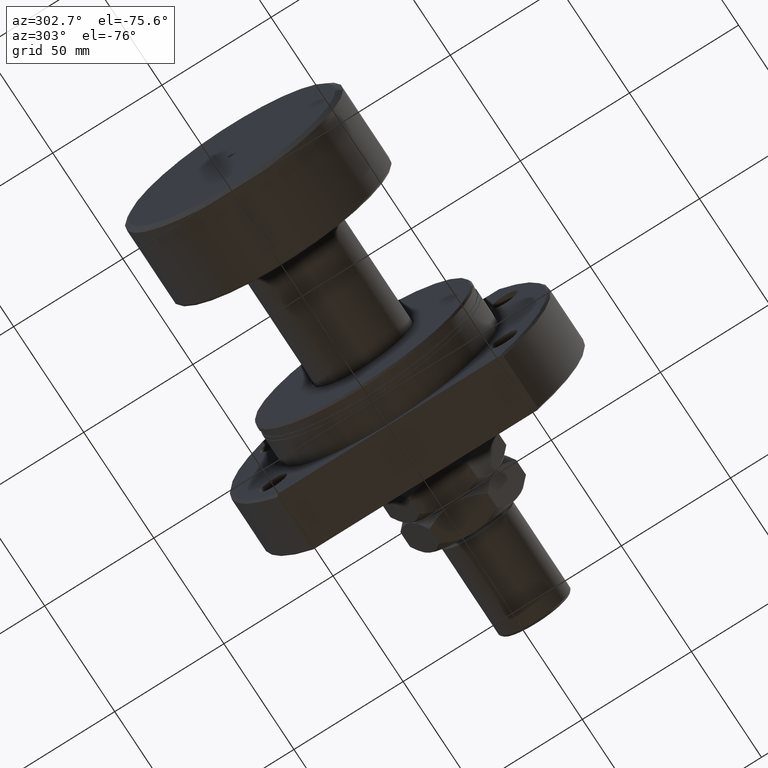
[diagram: clean part render]
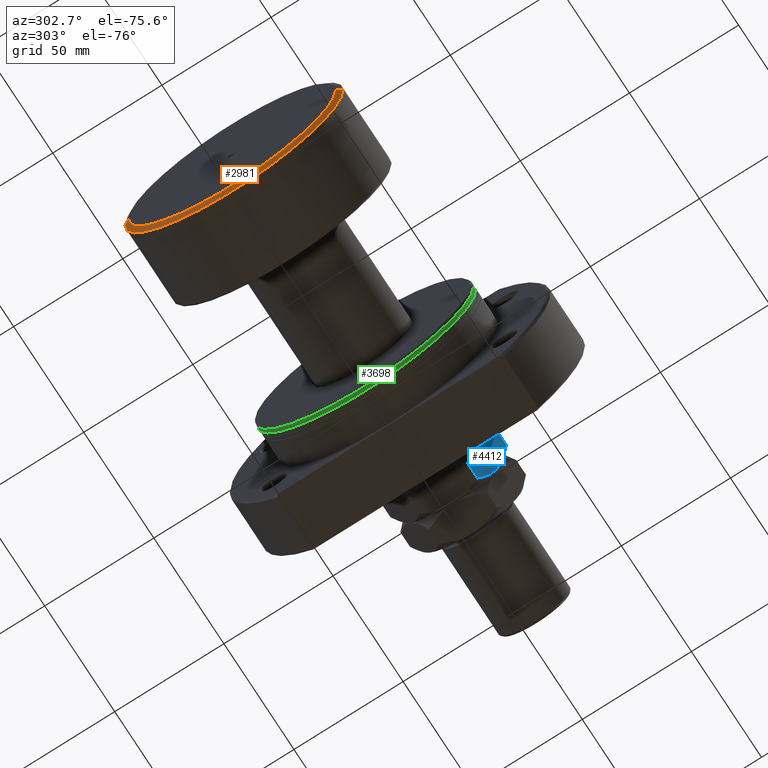
[diagram: same view with three faces highlighted in distinct colors, each labeled with its STEP entity id]
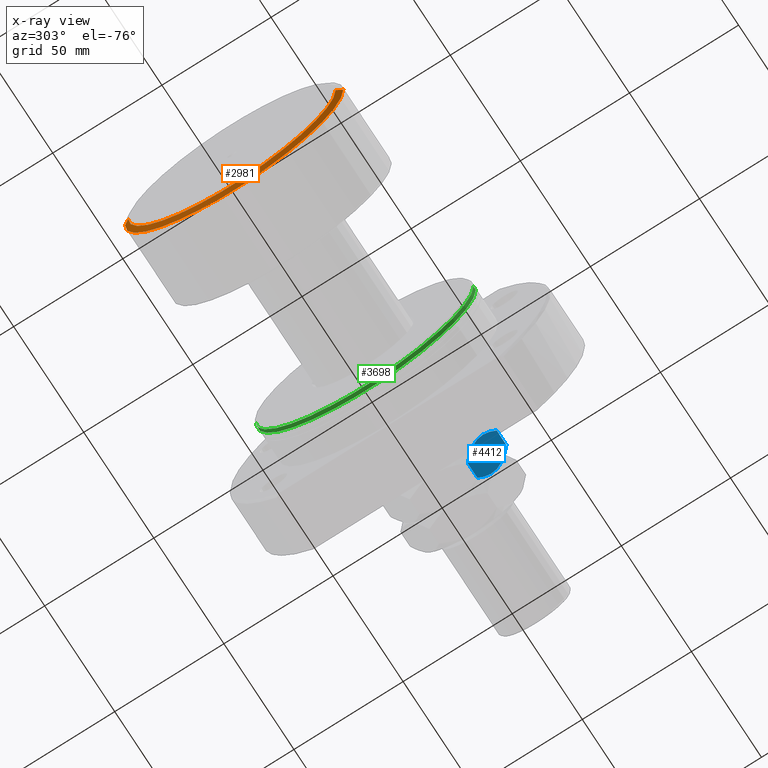
[diagram: x-ray of the same camera — body ghosted, the three highlighted faces saturated]
A machine part, auxiliary view with three faces highlighted in distinct colors.
The next image is the same camera in x-ray (body ghosted, the three faces saturated) — at least one of them is partly hidden behind the body in this view.
Their STEP definitions:

[orange] entity #2981 — the highlighted conical surface has half-angle 59.036 deg.
#6 = VERTEX_POINT ( 'NONE', #2720 ) ;
#60 = CARTESIAN_POINT ( 'NONE',  ( 4.801007089984315887E-15, 47.50000000000000000, 0.000000000000000000 ) ) ;
#141 = VECTOR ( 'NONE', #4007, 999.9999999999998863 ) ;
#286 = CARTESIAN_POINT ( 'NONE',  ( 5.309039692967122051E-15, 5.678242641172895614E-32, 0.000000000000000000 ) ) ;
#313 = VECTOR ( 'NONE', #1929, 999.9999999999998863 ) ;
#344 = ORIENTED_EDGE ( 'NONE', *, *, #2187, .F. ) ;
#417 = LINE ( 'NONE', #60, #313 ) ;
#567 = DIRECTION ( 'NONE',  ( -1.000000000000000000, -1.069542322069065801E-17, -0.000000000000000000 ) ) ;
#697 = EDGE_CURVE ( 'NONE', #6, #3806, #2085, .T. ) ;
#738 = ORIENTED_EDGE ( 'NONE', *, *, #4563, .T. ) ;
#922 = CONICAL_SURFACE ( 'NONE', #2252, 47.50000000000000000, 1.030376826524312728 ) ;
#1032 = DIRECTION ( 'NONE',  ( 1.069542322069065647E-17, -1.000000000000000000, 0.000000000000000000 ) ) ;
#1223 = DIRECTION ( 'NONE',  ( 8.673617379884035472E-18, -1.000000000000000000, 0.000000000000000000 ) ) ;
#1252 = AXIS2_PLACEMENT_3D ( 'NONE', #1498, #3006, #1223 ) ;
#1498 = CARTESIAN_POINT ( 'NONE',  ( 1.500000000000005995, 1.604313483103604941E-17, 0.000000000000000000 ) ) ;
#1607 = ORIENTED_EDGE ( 'NONE', *, *, #697, .F. ) ;
#1700 = ORIENTED_EDGE ( 'NONE', *, *, #3163, .T. ) ;
#1727 = FACE_OUTER_BOUND ( 'NONE', #1885, .T. ) ;
#1885 = EDGE_LOOP ( 'NONE', ( #1607, #344, #738, #1700 ) ) ;
#1929 = DIRECTION ( 'NONE',  ( 0.5144957554275262357, 0.8574929257125444293, 0.000000000000000000 ) ) ;
#2085 = LINE ( 'NONE', #3607, #141 ) ;
#2187 = EDGE_CURVE ( 'NONE', #2527, #6, #4825, .T. ) ;
#2252 = AXIS2_PLACEMENT_3D ( 'NONE', #2539, #4468, #3647 ) ;
#2279 = CARTESIAN_POINT ( 'NONE',  ( 1.500000000000005551, 50.00000000000000000, 0.000000000000000000 ) ) ;
#2527 = VERTEX_POINT ( 'NONE', #2700 ) ;
#2539 = CARTESIAN_POINT ( 'NONE',  ( 5.309039692967122051E-15, 5.678242641172895614E-32, 0.000000000000000000 ) ) ;
#2700 = CARTESIAN_POINT ( 'NONE',  ( 4.801007089984315887E-15, 47.50000000000000000, 0.000000000000000000 ) ) ;
#2720 = CARTESIAN_POINT ( 'NONE',  ( 5.817072295949928215E-15, -47.50000000000000000, 5.970153145843347150E-15 ) ) ;
#2981 = ADVANCED_FACE ( 'NONE', ( #1727 ), #922, .T. ) ;
#3006 = DIRECTION ( 'NONE',  ( -1.000000000000000000, -1.069542322069065801E-17, -0.000000000000000000 ) ) ;
#3130 = VERTEX_POINT ( 'NONE', #2279 ) ;
#3163 = EDGE_CURVE ( 'NONE', #3130, #3806, #4479, .T. ) ;
#3607 = CARTESIAN_POINT ( 'NONE',  ( 5.817072295949928215E-15, -47.50000000000000000, 5.817072295949928215E-15 ) ) ;
#3610 = AXIS2_PLACEMENT_3D ( 'NONE', #286, #567, #1032 ) ;
#3647 = DIRECTION ( 'NONE',  ( -1.069542322069065647E-17, 1.000000000000000000, 0.000000000000000000 ) ) ;
#3806 = VERTEX_POINT ( 'NONE', #4391 ) ;
#4007 = DIRECTION ( 'NONE',  ( 0.5144957554275262357, -0.8574929257125444293, 1.050125966765366654E-16 ) ) ;
#4391 = CARTESIAN_POINT ( 'NONE',  ( 1.500000000000006217, -50.00000000000000000, 6.123233995736766085E-15 ) ) ;
#4468 = DIRECTION ( 'NONE',  ( 1.000000000000000000, 1.069542322069065801E-17, 0.000000000000000000 ) ) ;
#4479 = CIRCLE ( 'NONE', #1252, 50.00000000000000000 ) ;
#4563 = EDGE_CURVE ( 'NONE', #2527, #3130, #417, .T. ) ;
#4825 = CIRCLE ( 'NONE', #3610, 47.50000000000000000 ) ;

[blue] entity #4412 — the highlighted planar face has unit normal (-0, 0.866, 0.5).
#16 = DIRECTION ( 'NONE',  ( -0.8660254037844388186, -0.4999999999999996114, 0.000000000000000000 ) ) ;
#58 = VECTOR ( 'NONE', #1412, 1000.000000000000000 ) ;
#114 = ORIENTED_EDGE ( 'NONE', *, *, #3885, .F. ) ;
#173 = CARTESIAN_POINT ( 'NONE',  ( 23.00000000000000000, -13.27905619136139670, 14.00000000000000000 ) ) ;
#200 = CARTESIAN_POINT ( 'NONE',  ( 19.32386580747566640, -15.40147325699251724, 12.30893151126141660 ) ) ;
#306 = B_SPLINE_CURVE_WITH_KNOTS ( 'NONE', 3,
 ( #4829, #1763, #3637, #2926, #200, #1739, #2453, #4775 ),
 .UNSPECIFIED., .F., .F.,
 ( 4, 2, 2, 4 ),
 ( 0.01376519981810309448, 0.02059946815584628652, 0.02401660232471787559, 0.02743373649358946467 ),
 .UNSPECIFIED. ) ;
#348 = CARTESIAN_POINT ( 'NONE',  ( 14.02580821503726938, -18.46030823416894151, 0.1772566043169696015 ) ) ;
#354 = CARTESIAN_POINT ( 'NONE',  ( 23.00000000000000000, -13.27905619136139670, 3.558112382722774303 ) ) ;
#374 = CARTESIAN_POINT ( 'NONE',  ( 15.51476468404854003, -17.60065881597367010, 0.4351638361031570645 ) ) ;
#393 = EDGE_CURVE ( 'NONE', #2418, #1326, #2638, .T. ) ;
#429 = ORIENTED_EDGE ( 'NONE', *, *, #1047, .F. ) ;
#449 = EDGE_CURVE ( 'NONE', #2418, #3002, #3493, .T. ) ;
#745 = CARTESIAN_POINT ( 'NONE',  ( 11.49999999999998934, -19.91858428704209061, 0.000000000000000000 ) ) ;
#817 = CARTESIAN_POINT ( 'NONE',  ( -3.738821091738284272E-15, -26.55811238272277919, 10.44188761727723680 ) ) ;
#1037 = CARTESIAN_POINT ( 'NONE',  ( 11.49999999999998934, -19.91858428704209061, 14.00000000000000000 ) ) ;
#1047 = EDGE_CURVE ( 'NONE', #4459, #1326, #1126, .T. ) ;
#1126 = B_SPLINE_CURVE_WITH_KNOTS ( 'NONE', 3,
 ( #3023, #4528, #3408, #2648, #2268, #1654, #2447, #4629 ),
 .UNSPECIFIED., .F., .F.,
 ( 4, 2, 2, 4 ),
 ( 0.01376519981810311183, 0.02059946815584628305, 0.02401660232471787212, 0.02743373649358946120 ),
 .UNSPECIFIED. ) ;
#1132 = CARTESIAN_POINT ( 'NONE',  ( -4.336808689942017736E-15, -26.55811238272277919, 14.00000000000000000 ) ) ;
#1260 = CARTESIAN_POINT ( 'NONE',  ( 1.803367014497421650, -25.51693795145499877, 11.48306204854501722 ) ) ;
#1326 = VERTEX_POINT ( 'NONE', #4858 ) ;
#1350 = ORIENTED_EDGE ( 'NONE', *, *, #449, .F. ) ;
#1412 = DIRECTION ( 'NONE',  ( -0.000000000000000000, -0.000000000000000000, -1.000000000000000000 ) ) ;
#1477 = CARTESIAN_POINT ( 'NONE',  ( 11.49999999999998934, -19.91858428704209061, 0.000000000000000000 ) ) ;
#1621 = CARTESIAN_POINT ( 'NONE',  ( -3.738821091738284272E-15, -26.55811238272277919, 10.44188761727723680 ) ) ;
#1654 = CARTESIAN_POINT ( 'NONE',  ( 1.814388699413959527, -25.51057457870151524, 2.556077879292241839 ) ) ;
#1679 = ORIENTED_EDGE ( 'NONE', *, *, #3835, .F. ) ;
#1739 = CARTESIAN_POINT ( 'NONE',  ( 21.18561130058603581, -14.32659399538266598, 11.44392212070776260 ) ) ;
#1763 = CARTESIAN_POINT ( 'NONE',  ( 13.50031108690880899, -18.76370414255229235, 14.00000000000000178 ) ) ;
#2030 = ORIENTED_EDGE ( 'NONE', *, *, #393, .T. ) ;
#2264 = CARTESIAN_POINT ( 'NONE',  ( 19.35245248169770349, -15.38496873293517631, 1.632211428131101982 ) ) ;
#2268 = CARTESIAN_POINT ( 'NONE',  ( 3.676134192524331379, -24.43569531709166753, 1.691068488738588504 ) ) ;
#2302 = CARTESIAN_POINT ( 'NONE',  ( 3.647547518302286740, -24.45219984114900669, 12.36778857186890868 ) ) ;
#2358 = CARTESIAN_POINT ( 'NONE',  ( 9.475678885897345083, -21.08732662719550177, 13.88890122221209822 ) ) ;
#2403 = CARTESIAN_POINT ( 'NONE',  ( 23.00000000000000000, -13.27905619136139670, 10.44188761727722969 ) ) ;
#2418 = VERTEX_POINT ( 'NONE', #817 ) ;
#2447 = CARTESIAN_POINT ( 'NONE',  ( 0.9006392137919247975, -26.03812809019728292, 3.038128090197230069 ) ) ;
#2453 = CARTESIAN_POINT ( 'NONE',  ( 22.09936078620807010, -13.79904048388690185, 10.96187190980276682 ) ) ;
#2638 = LINE ( 'NONE', #4154, #58 ) ;
#2648 = CARTESIAN_POINT ( 'NONE',  ( 4.624867511207326309, -23.88794388016087566, 1.307843751066036786 ) ) ;
#2791 = CARTESIAN_POINT ( 'NONE',  ( 10.99639501427888355, -20.20934076111340616, 14.00000000000000355 ) ) ;
#2805 = DIRECTION ( 'NONE',  ( -0.000000000000000000, -0.000000000000000000, -1.000000000000000000 ) ) ;
#2926 = CARTESIAN_POINT ( 'NONE',  ( 18.37513248879265504, -15.94922469392330200, 12.69215624893396388 ) ) ;
#2946 = CARTESIAN_POINT ( 'NONE',  ( 21.19663298550257124, -14.32023062262917890, 2.516937951454996991 ) ) ;
#2985 = VECTOR ( 'NONE', #2805, 1000.000000000000000 ) ;
#2997 = CARTESIAN_POINT ( 'NONE',  ( 23.00000000000000000, -13.27905619136139670, 3.558112382722774303 ) ) ;
#3002 = VERTEX_POINT ( 'NONE', #1037 ) ;
#3016 = FACE_OUTER_BOUND ( 'NONE', #3815, .T. ) ;
#3023 = CARTESIAN_POINT ( 'NONE',  ( 11.49999999999998934, -19.91858428704209061, 0.000000000000000000 ) ) ;
#3180 = CARTESIAN_POINT ( 'NONE',  ( 11.49999999999998934, -19.91858428704209061, 14.00000000000000000 ) ) ;
#3404 = CARTESIAN_POINT ( 'NONE',  ( 12.51003418050899896, -19.33544078103449237, 0.02214754275533956790 ) ) ;
#3408 = CARTESIAN_POINT ( 'NONE',  ( 7.533391302902209041, -22.20870688608141563, 0.3531725490935799794 ) ) ;
#3493 = B_SPLINE_CURVE_WITH_KNOTS ( 'NONE', 3,
 ( #1621, #1260, #2302, #3810, #4232, #3839, #2358, #4785, #2791, #3180 ),
 .UNSPECIFIED., .F., .F.,
 ( 4, 2, 2, 2, 4 ),
 ( 2.544306848971405334E-07, 0.006882727124393994179, 0.01032396347124854563, 0.01204458164467582006, 0.01376519981810309448 ),
 .UNSPECIFIED. ) ;
#3524 = VERTEX_POINT ( 'NONE', #354 ) ;
#3539 = LINE ( 'NONE', #173, #2985 ) ;
#3637 = CARTESIAN_POINT ( 'NONE',  ( 15.46660869709777941, -17.62846168800276914, 13.64682745090642335 ) ) ;
#3677 = PLANE ( 'NONE',  #4107 ) ;
#3684 = CARTESIAN_POINT ( 'NONE',  ( 12.00360498572109869, -19.62782781297077861, 5.082197683525801264E-18 ) ) ;
#3702 = EDGE_CURVE ( 'NONE', #4748, #3524, #3539, .T. ) ;
#3810 = CARTESIAN_POINT ( 'NONE',  ( 6.513252209336783949, -22.79768446636224866, 13.31372419864524659 ) ) ;
#3815 = EDGE_LOOP ( 'NONE', ( #114, #3902, #1679, #1350, #2030, #429 ) ) ;
#3835 = EDGE_CURVE ( 'NONE', #3002, #4748, #306, .T. ) ;
#3839 = CARTESIAN_POINT ( 'NONE',  ( 8.974191784962714635, -21.37686033991523615, 13.82274339568303745 ) ) ;
#3885 = EDGE_CURVE ( 'NONE', #3524, #4459, #4734, .T. ) ;
#3902 = ORIENTED_EDGE ( 'NONE', *, *, #3702, .F. ) ;
#4094 = CARTESIAN_POINT ( 'NONE',  ( 16.48674779066320539, -17.03948410772191480, 0.6862758013547543001 ) ) ;
#4107 = AXIS2_PLACEMENT_3D ( 'NONE', #1132, #4847, #16 ) ;
#4154 = CARTESIAN_POINT ( 'NONE',  ( -4.336808689942017736E-15, -26.55811238272277919, 14.00000000000000000 ) ) ;
#4232 = CARTESIAN_POINT ( 'NONE',  ( 7.485235315951450197, -22.23650975811052177, 13.56483616389685132 ) ) ;
#4412 = ADVANCED_FACE ( 'NONE', ( #3016 ), #3677, .F. ) ;
#4459 = VERTEX_POINT ( 'NONE', #1477 ) ;
#4526 = CARTESIAN_POINT ( 'NONE',  ( 13.52432111410264071, -18.74984194688869010, 0.1110987777879014343 ) ) ;
#4528 = CARTESIAN_POINT ( 'NONE',  ( 9.499688913091178577, -21.07346443153188886, -9.147955830346443662E-17 ) ) ;
#4629 = CARTESIAN_POINT ( 'NONE',  ( -4.401974839353477935E-15, -26.55811238272277919, 3.558112382722767197 ) ) ;
#4734 = B_SPLINE_CURVE_WITH_KNOTS ( 'NONE', 3,
 ( #2997, #2946, #2264, #4094, #374, #348, #4526, #3404, #3684, #745 ),
 .UNSPECIFIED., .F., .F.,
 ( 4, 2, 2, 2, 4 ),
 ( 2.544306848944028700E-07, 0.006882727124394009792, 0.01032396347124856124, 0.01204458164467583567, 0.01376519981810311183 ),
 .UNSPECIFIED. ) ;
#4748 = VERTEX_POINT ( 'NONE', #2403 ) ;
#4775 = CARTESIAN_POINT ( 'NONE',  ( 23.00000000000000000, -13.27905619136139670, 10.44188761727722969 ) ) ;
#4785 = CARTESIAN_POINT ( 'NONE',  ( 10.48996581949098683, -20.50172779304969239, 13.97785245724466385 ) ) ;
#4829 = CARTESIAN_POINT ( 'NONE',  ( 11.49999999999998934, -19.91858428704209061, 14.00000000000000000 ) ) ;
#4847 = DIRECTION ( 'NONE',  ( -0.4999999999999996114, 0.8660254037844388186, 0.000000000000000000 ) ) ;
#4858 = CARTESIAN_POINT ( 'NONE',  ( -4.401974839353477935E-15, -26.55811238272277919, 3.558112382722767197 ) ) ;

[green] entity #3698 — the highlighted cylindrical surface (partial cylindrical patch) has radius 50 mm, axis along (1, 0, 0).
#178 = DIRECTION ( 'NONE',  ( 1.000000000000000000, 5.504030557965630938E-17, -0.000000000000000000 ) ) ;
#459 = CARTESIAN_POINT ( 'NONE',  ( 2.699999999999792788, 1.486088250650606153E-16, 0.000000000000000000 ) ) ;
#527 = DIRECTION ( 'NONE',  ( 1.000000000000000000, 5.504030557965630938E-17, -0.000000000000000000 ) ) ;
#679 = CARTESIAN_POINT ( 'NONE',  ( 0.9999999999997954969, -50.00000000000000000, 6.123233995736766085E-15 ) ) ;
#688 = AXIS2_PLACEMENT_3D ( 'NONE', #459, #1952, #4616 ) ;
#751 = CARTESIAN_POINT ( 'NONE',  ( 2.699999999999790123, 50.00000000000000000, 0.000000000000000000 ) ) ;
#1200 = EDGE_CURVE ( 'NONE', #3132, #3529, #3602, .T. ) ;
#1251 = DIRECTION ( 'NONE',  ( 0.000000000000000000, 1.000000000000000000, 0.000000000000000000 ) ) ;
#1638 = CYLINDRICAL_SURFACE ( 'NONE', #4419, 50.00000000000000000 ) ;
#1640 = CARTESIAN_POINT ( 'NONE',  ( 0.9999999999997927214, 5.504030557964467368E-17, 0.000000000000000000 ) ) ;
#1670 = LINE ( 'NONE', #3920, #3695 ) ;
#1765 = ORIENTED_EDGE ( 'NONE', *, *, #2071, .T. ) ;
#1804 = ORIENTED_EDGE ( 'NONE', *, *, #1200, .F. ) ;
#1952 = DIRECTION ( 'NONE',  ( 1.000000000000000000, 5.504030557965630938E-17, -0.000000000000000000 ) ) ;
#2071 = EDGE_CURVE ( 'NONE', #3900, #2722, #4414, .T. ) ;
#2344 = CARTESIAN_POINT ( 'NONE',  ( 44.50000000000000000, -50.00000000000000000, 6.123233995736766085E-15 ) ) ;
#2489 = DIRECTION ( 'NONE',  ( 1.000000000000000000, 5.504030557965630938E-17, -0.000000000000000000 ) ) ;
#2722 = VERTEX_POINT ( 'NONE', #4160 ) ;
#2779 = CARTESIAN_POINT ( 'NONE',  ( 44.50000000000000000, 2.449293598294705724E-15, 0.000000000000000000 ) ) ;
#3078 = DIRECTION ( 'NONE',  ( 1.000000000000000000, 5.504030557965630938E-17, -0.000000000000000000 ) ) ;
#3132 = VERTEX_POINT ( 'NONE', #3443 ) ;
#3171 = FACE_OUTER_BOUND ( 'NONE', #3554, .T. ) ;
#3443 = CARTESIAN_POINT ( 'NONE',  ( 2.699999999999795453, -50.00000000000000000, 6.123233995736766085E-15 ) ) ;
#3445 = AXIS2_PLACEMENT_3D ( 'NONE', #1640, #178, #4614 ) ;
#3529 = VERTEX_POINT ( 'NONE', #751 ) ;
#3554 = EDGE_LOOP ( 'NONE', ( #3809, #1765, #3716, #1804 ) ) ;
#3602 = CIRCLE ( 'NONE', #688, 50.00000000000000000 ) ;
#3652 = EDGE_CURVE ( 'NONE', #3900, #3132, #3903, .T. ) ;
#3695 = VECTOR ( 'NONE', #2489, 1000.000000000000000 ) ;
#3698 = ADVANCED_FACE ( 'NONE', ( #3171 ), #1638, .T. ) ;
#3716 = ORIENTED_EDGE ( 'NONE', *, *, #4617, .T. ) ;
#3809 = ORIENTED_EDGE ( 'NONE', *, *, #3652, .F. ) ;
#3900 = VERTEX_POINT ( 'NONE', #679 ) ;
#3903 = LINE ( 'NONE', #2344, #4334 ) ;
#3920 = CARTESIAN_POINT ( 'NONE',  ( 44.50000000000000000, 50.00000000000000000, 0.000000000000000000 ) ) ;
#4160 = CARTESIAN_POINT ( 'NONE',  ( 0.9999999999997899458, 50.00000000000000000, 0.000000000000000000 ) ) ;
#4334 = VECTOR ( 'NONE', #527, 1000.000000000000000 ) ;
#4414 = CIRCLE ( 'NONE', #3445, 50.00000000000000000 ) ;
#4419 = AXIS2_PLACEMENT_3D ( 'NONE', #2779, #3078, #1251 ) ;
#4614 = DIRECTION ( 'NONE',  ( -5.637851296924623057E-17, 1.000000000000000000, 0.000000000000000000 ) ) ;
#4616 = DIRECTION ( 'NONE',  ( -5.204170427930421283E-17, 1.000000000000000000, 0.000000000000000000 ) ) ;
#4617 = EDGE_CURVE ( 'NONE', #2722, #3529, #1670, .T. ) ;